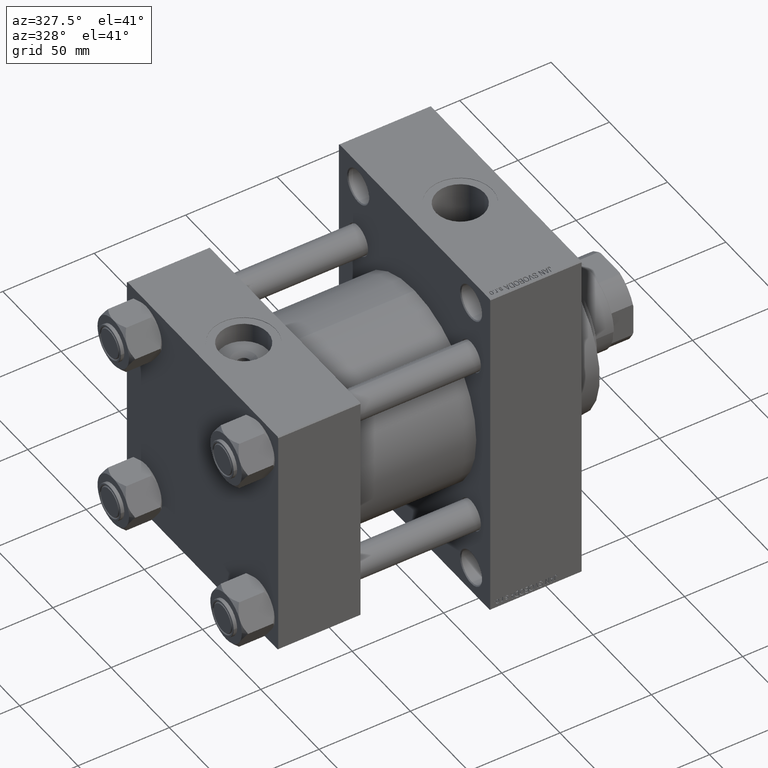
[diagram: clean part render]
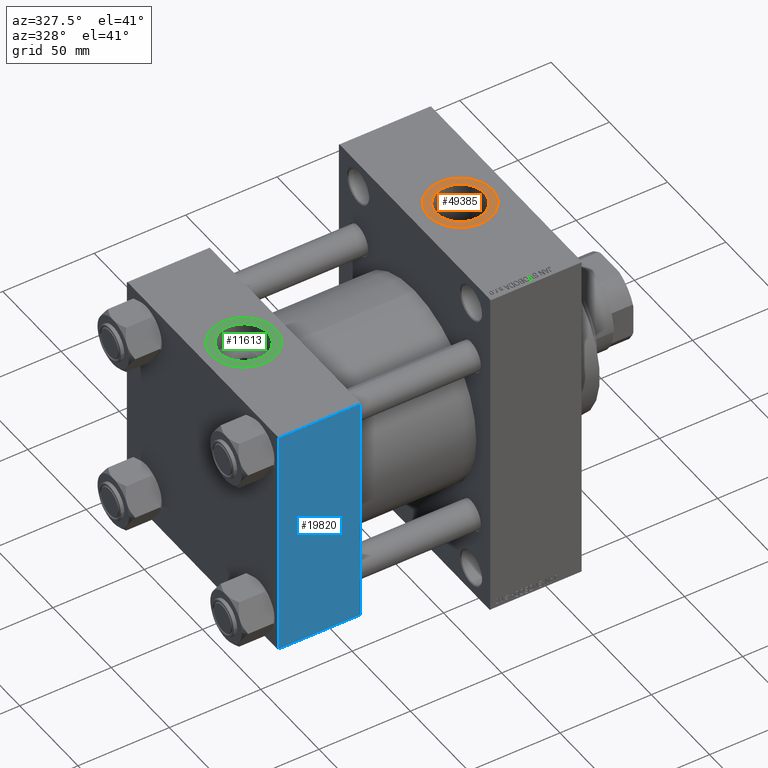
[diagram: same view with three faces highlighted in distinct colors, each labeled with its STEP entity id]
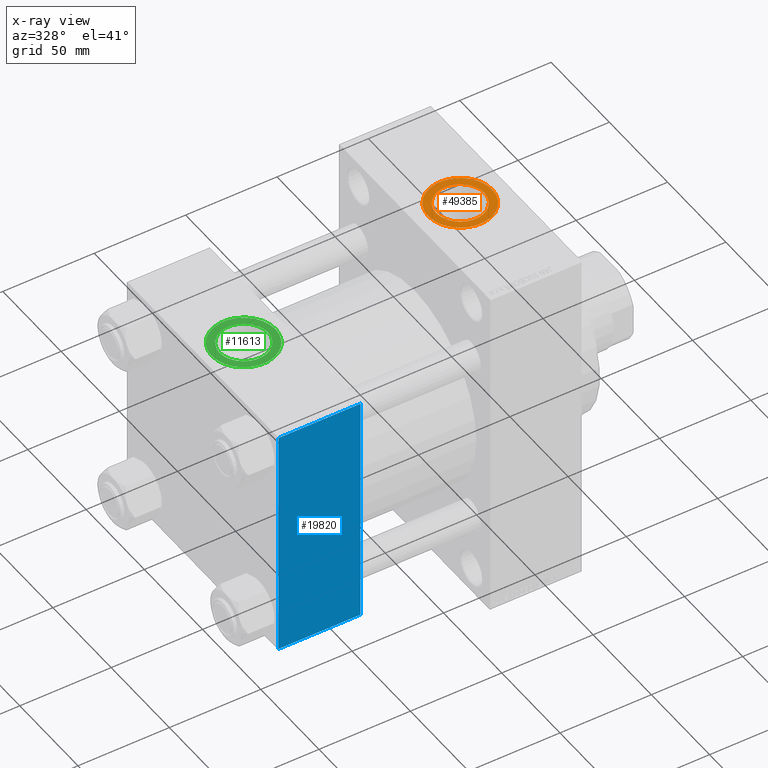
[diagram: x-ray of the same camera — body ghosted, the three highlighted faces saturated]
A machine part, auxiliary view with three faces highlighted in distinct colors.
The next image is the same camera in x-ray (body ghosted, the three faces saturated) — at least one of them is partly hidden behind the body in this view.
Their STEP definitions:

[orange] entity #49385 — the highlighted planar face has unit normal (0, 0, 1).
#807 = CARTESIAN_POINT ( 'NONE',  ( 140.9999999999999716, 0.000000000000000000, 94.79999999999996874 ) ) ;
#4248 = CARTESIAN_POINT ( 'NONE',  ( 140.9999999999999716, 0.000000000000000000, 94.79999999999996874 ) ) ;
#5607 = DIRECTION ( 'NONE',  ( 0.000000000000000000, 0.000000000000000000, 1.000000000000000000 ) ) ;
#6898 = EDGE_CURVE ( 'NONE', #24868, #24002, #42858, .T. ) ;
#8915 = EDGE_CURVE ( 'NONE', #28335, #20656, #9178, .T. ) ;
#9178 = CIRCLE ( 'NONE', #16401, 13.22000000000000952 ) ;
#12640 = CARTESIAN_POINT ( 'NONE',  ( 140.9999999999999716, 0.000000000000000000, 94.79999999999996874 ) ) ;
#13451 = CIRCLE ( 'NONE', #41596, 17.50000000000001421 ) ;
#14791 = CARTESIAN_POINT ( 'NONE',  ( 127.7799999999999443, 0.000000000000000000, 94.79999999999996874 ) ) ;
#15796 = DIRECTION ( 'NONE',  ( -0.000000000000000000, -0.000000000000000000, -1.000000000000000000 ) ) ;
#16076 = DIRECTION ( 'NONE',  ( 0.000000000000000000, 0.000000000000000000, 1.000000000000000000 ) ) ;
#16401 = AXIS2_PLACEMENT_3D ( 'NONE', #12640, #35065, #46619 ) ;
#17359 = ORIENTED_EDGE ( 'NONE', *, *, #6898, .T. ) ;
#19095 = CARTESIAN_POINT ( 'NONE',  ( 140.9999999999999716, 0.000000000000000000, 94.79999999999996874 ) ) ;
#20445 = EDGE_CURVE ( 'NONE', #24002, #24868, #13451, .T. ) ;
#20656 = VERTEX_POINT ( 'NONE', #14791 ) ;
#21481 = CARTESIAN_POINT ( 'NONE',  ( 140.9999999999999716, 0.000000000000000000, 94.79999999999996874 ) ) ;
#21680 = ORIENTED_EDGE ( 'NONE', *, *, #47658, .T. ) ;
#23478 = CARTESIAN_POINT ( 'NONE',  ( 154.2199999999999704, 1.618983068472802926E-15, 94.79999999999996874 ) ) ;
#23855 = AXIS2_PLACEMENT_3D ( 'NONE', #19095, #15796, #49279 ) ;
#24002 = VERTEX_POINT ( 'NONE', #41865 ) ;
#24517 = PLANE ( 'NONE',  #37573 ) ;
#24868 = VERTEX_POINT ( 'NONE', #44641 ) ;
#25249 = FACE_OUTER_BOUND ( 'NONE', #36491, .T. ) ;
#27925 = DIRECTION ( 'NONE',  ( 1.000000000000000000, 0.000000000000000000, 0.000000000000000000 ) ) ;
#28335 = VERTEX_POINT ( 'NONE', #23478 ) ;
#28388 = AXIS2_PLACEMENT_3D ( 'NONE', #807, #39348, #38614 ) ;
#30398 = ORIENTED_EDGE ( 'NONE', *, *, #20445, .T. ) ;
#35065 = DIRECTION ( 'NONE',  ( -0.000000000000000000, -0.000000000000000000, -1.000000000000000000 ) ) ;
#36491 = EDGE_LOOP ( 'NONE', ( #30398, #17359 ) ) ;
#37573 = AXIS2_PLACEMENT_3D ( 'NONE', #21481, #5607, #43886 ) ;
#38614 = DIRECTION ( 'NONE',  ( 1.000000000000000000, 0.000000000000000000, 0.000000000000000000 ) ) ;
#39061 = ORIENTED_EDGE ( 'NONE', *, *, #8915, .T. ) ;
#39348 = DIRECTION ( 'NONE',  ( 0.000000000000000000, 0.000000000000000000, 1.000000000000000000 ) ) ;
#41596 = AXIS2_PLACEMENT_3D ( 'NONE', #4248, #16076, #27925 ) ;
#41865 = CARTESIAN_POINT ( 'NONE',  ( 158.4999999999999716, 0.000000000000000000, 94.79999999999996874 ) ) ;
#42858 = CIRCLE ( 'NONE', #28388, 17.50000000000001421 ) ;
#43886 = DIRECTION ( 'NONE',  ( 1.000000000000000000, 0.000000000000000000, -0.000000000000000000 ) ) ;
#44126 = FACE_BOUND ( 'NONE', #44811, .T. ) ;
#44641 = CARTESIAN_POINT ( 'NONE',  ( 123.4999999999999432, 2.143131898507871404E-15, 94.79999999999996874 ) ) ;
#44811 = EDGE_LOOP ( 'NONE', ( #21680, #39061 ) ) ;
#46619 = DIRECTION ( 'NONE',  ( 1.000000000000000000, 0.000000000000000000, 0.000000000000000000 ) ) ;
#47125 = CIRCLE ( 'NONE', #23855, 13.22000000000000952 ) ;
#47658 = EDGE_CURVE ( 'NONE', #20656, #28335, #47125, .T. ) ;
#49279 = DIRECTION ( 'NONE',  ( 1.000000000000000000, 0.000000000000000000, 0.000000000000000000 ) ) ;
#49385 = ADVANCED_FACE ( 'NONE', ( #44126, #25249 ), #24517, .T. ) ;

[blue] entity #19820 — the highlighted planar face has unit normal (0, 1, 0).
#200 = VERTEX_POINT ( 'NONE', #10604 ) ;
#995 = VECTOR ( 'NONE', #33085, 1000.000000000000000 ) ;
#1967 = VECTOR ( 'NONE', #38551, 1000.000000000000000 ) ;
#3972 = DIRECTION ( 'NONE',  ( 0.000000000000000000, 0.000000000000000000, -1.000000000000000000 ) ) ;
#6050 = EDGE_CURVE ( 'NONE', #41255, #13096, #17725, .T. ) ;
#7830 = ORIENTED_EDGE ( 'NONE', *, *, #6050, .F. ) ;
#10604 = CARTESIAN_POINT ( 'NONE',  ( 0.000000000000000000, -65.00000000000000000, -64.49999999999991473 ) ) ;
#10908 = VECTOR ( 'NONE', #3972, 1000.000000000000000 ) ;
#11380 = LINE ( 'NONE', #22717, #1967 ) ;
#12956 = EDGE_CURVE ( 'NONE', #38914, #200, #16048, .T. ) ;
#13096 = VERTEX_POINT ( 'NONE', #27165 ) ;
#14575 = EDGE_CURVE ( 'NONE', #200, #13096, #11380, .T. ) ;
#14928 = DIRECTION ( 'NONE',  ( -1.000000000000000000, 0.000000000000000000, 0.000000000000000000 ) ) ;
#16048 = LINE ( 'NONE', #46757, #10908 ) ;
#17725 = LINE ( 'NONE', #30065, #995 ) ;
#18561 = FACE_OUTER_BOUND ( 'NONE', #21693, .T. ) ;
#19820 = ADVANCED_FACE ( 'NONE', ( #18561 ), #33917, .F. ) ;
#21693 = EDGE_LOOP ( 'NONE', ( #49701, #37922, #7830, #43882 ) ) ;
#22717 = CARTESIAN_POINT ( 'NONE',  ( 45.00000000000000000, -65.00000000000000000, -64.49999999999991473 ) ) ;
#23001 = LINE ( 'NONE', #30796, #47086 ) ;
#24515 = DIRECTION ( 'NONE',  ( 0.000000000000000000, -0.000000000000000000, 1.000000000000000000 ) ) ;
#25575 = CARTESIAN_POINT ( 'NONE',  ( 0.000000000000000000, -65.00000000000000000, 64.50000000000000000 ) ) ;
#26631 = CARTESIAN_POINT ( 'NONE',  ( 45.00000000000000000, -65.00000000000000000, 65.00000000000000000 ) ) ;
#27165 = CARTESIAN_POINT ( 'NONE',  ( 45.00000000000000000, -65.00000000000000000, -64.49999999999991473 ) ) ;
#30065 = CARTESIAN_POINT ( 'NONE',  ( 45.00000000000000000, -65.00000000000000000, 65.00000000000000000 ) ) ;
#30796 = CARTESIAN_POINT ( 'NONE',  ( 45.00000000000000000, -65.00000000000000000, 64.50000000000000000 ) ) ;
#33085 = DIRECTION ( 'NONE',  ( 0.000000000000000000, 0.000000000000000000, -1.000000000000000000 ) ) ;
#33917 = PLANE ( 'NONE',  #36777 ) ;
#36777 = AXIS2_PLACEMENT_3D ( 'NONE', #26631, #41973, #24515 ) ;
#37922 = ORIENTED_EDGE ( 'NONE', *, *, #14575, .T. ) ;
#38078 = CARTESIAN_POINT ( 'NONE',  ( 45.00000000000000000, -65.00000000000000000, 64.50000000000000000 ) ) ;
#38551 = DIRECTION ( 'NONE',  ( 1.000000000000000000, 0.000000000000000000, 0.000000000000000000 ) ) ;
#38914 = VERTEX_POINT ( 'NONE', #25575 ) ;
#41255 = VERTEX_POINT ( 'NONE', #38078 ) ;
#41973 = DIRECTION ( 'NONE',  ( -0.000000000000000000, 1.000000000000000000, 0.000000000000000000 ) ) ;
#43882 = ORIENTED_EDGE ( 'NONE', *, *, #46422, .T. ) ;
#46422 = EDGE_CURVE ( 'NONE', #41255, #38914, #23001, .T. ) ;
#46757 = CARTESIAN_POINT ( 'NONE',  ( 0.000000000000000000, -65.00000000000000000, 65.00000000000000000 ) ) ;
#47086 = VECTOR ( 'NONE', #14928, 1000.000000000000000 ) ;
#49701 = ORIENTED_EDGE ( 'NONE', *, *, #12956, .T. ) ;

[green] entity #11613 — the highlighted planar face has unit normal (0, 0, 1).
#1036 = CARTESIAN_POINT ( 'NONE',  ( 22.50000000000000000, -8.673617379884035472E-15, 64.79999999999999716 ) ) ;
#1193 = DIRECTION ( 'NONE',  ( 0.000000000000000000, 0.000000000000000000, 1.000000000000000000 ) ) ;
#4044 = EDGE_CURVE ( 'NONE', #9190, #33211, #13800, .T. ) ;
#6338 = DIRECTION ( 'NONE',  ( 1.000000000000000000, 0.000000000000000000, -0.000000000000000000 ) ) ;
#6589 = FACE_OUTER_BOUND ( 'NONE', #46040, .T. ) ;
#7458 = VERTEX_POINT ( 'NONE', #46057 ) ;
#7481 = EDGE_CURVE ( 'NONE', #7458, #21199, #33254, .T. ) ;
#7689 = CIRCLE ( 'NONE', #48662, 17.50000000000000000 ) ;
#9190 = VERTEX_POINT ( 'NONE', #41556 ) ;
#9265 = ORIENTED_EDGE ( 'NONE', *, *, #10408, .F. ) ;
#9932 = AXIS2_PLACEMENT_3D ( 'NONE', #46540, #1193, #46782 ) ;
#10408 = EDGE_CURVE ( 'NONE', #33211, #9190, #17236, .T. ) ;
#10480 = EDGE_LOOP ( 'NONE', ( #9265, #14433 ) ) ;
#11613 = ADVANCED_FACE ( 'NONE', ( #48627, #6589 ), #47716, .T. ) ;
#12741 = CARTESIAN_POINT ( 'NONE',  ( 22.50000000000000000, -8.673617379884035472E-15, 64.79999999999999716 ) ) ;
#13310 = AXIS2_PLACEMENT_3D ( 'NONE', #12741, #48878, #6338 ) ;
#13800 = CIRCLE ( 'NONE', #26708, 13.22000000000000242 ) ;
#14433 = ORIENTED_EDGE ( 'NONE', *, *, #4044, .F. ) ;
#17165 = DIRECTION ( 'NONE',  ( 1.000000000000000000, 0.000000000000000000, 0.000000000000000000 ) ) ;
#17236 = CIRCLE ( 'NONE', #45369, 13.22000000000000242 ) ;
#21199 = VERTEX_POINT ( 'NONE', #23287 ) ;
#22268 = CARTESIAN_POINT ( 'NONE',  ( 22.50000000000000000, -8.673617379884035472E-15, 64.79999999999999716 ) ) ;
#23287 = CARTESIAN_POINT ( 'NONE',  ( 4.999999999999997335, -6.530485481376167224E-15, 64.79999999999999716 ) ) ;
#25048 = DIRECTION ( 'NONE',  ( 1.000000000000000000, 0.000000000000000000, 0.000000000000000000 ) ) ;
#26708 = AXIS2_PLACEMENT_3D ( 'NONE', #22268, #34346, #41887 ) ;
#28509 = DIRECTION ( 'NONE',  ( 0.000000000000000000, 0.000000000000000000, 1.000000000000000000 ) ) ;
#29198 = ORIENTED_EDGE ( 'NONE', *, *, #45285, .T. ) ;
#29817 = CARTESIAN_POINT ( 'NONE',  ( 22.50000000000000000, -8.673617379884035472E-15, 64.79999999999999716 ) ) ;
#29933 = ORIENTED_EDGE ( 'NONE', *, *, #7481, .T. ) ;
#33211 = VERTEX_POINT ( 'NONE', #44818 ) ;
#33254 = CIRCLE ( 'NONE', #9932, 17.50000000000000000 ) ;
#34346 = DIRECTION ( 'NONE',  ( 0.000000000000000000, 0.000000000000000000, 1.000000000000000000 ) ) ;
#41556 = CARTESIAN_POINT ( 'NONE',  ( 9.279999999999994031, -7.054634311411234321E-15, 64.79999999999999716 ) ) ;
#41887 = DIRECTION ( 'NONE',  ( 1.000000000000000000, 0.000000000000000000, 0.000000000000000000 ) ) ;
#44818 = CARTESIAN_POINT ( 'NONE',  ( 35.71999999999999886, -8.673617379884035472E-15, 64.79999999999999716 ) ) ;
#45285 = EDGE_CURVE ( 'NONE', #21199, #7458, #7689, .T. ) ;
#45369 = AXIS2_PLACEMENT_3D ( 'NONE', #29817, #47951, #25048 ) ;
#46040 = EDGE_LOOP ( 'NONE', ( #29933, #29198 ) ) ;
#46057 = CARTESIAN_POINT ( 'NONE',  ( 40.00000000000000000, -8.673617379884035472E-15, 64.79999999999999716 ) ) ;
#46540 = CARTESIAN_POINT ( 'NONE',  ( 22.50000000000000000, -8.673617379884035472E-15, 64.79999999999999716 ) ) ;
#46782 = DIRECTION ( 'NONE',  ( 1.000000000000000000, 0.000000000000000000, 0.000000000000000000 ) ) ;
#47716 = PLANE ( 'NONE',  #13310 ) ;
#47951 = DIRECTION ( 'NONE',  ( 0.000000000000000000, 0.000000000000000000, 1.000000000000000000 ) ) ;
#48627 = FACE_BOUND ( 'NONE', #10480, .T. ) ;
#48662 = AXIS2_PLACEMENT_3D ( 'NONE', #1036, #28509, #17165 ) ;
#48878 = DIRECTION ( 'NONE',  ( 0.000000000000000000, 0.000000000000000000, 1.000000000000000000 ) ) ;